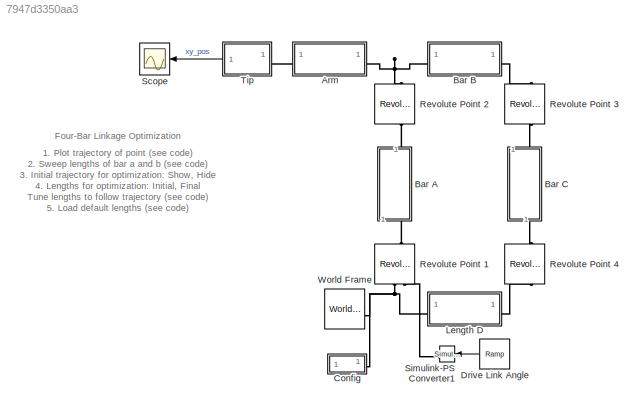
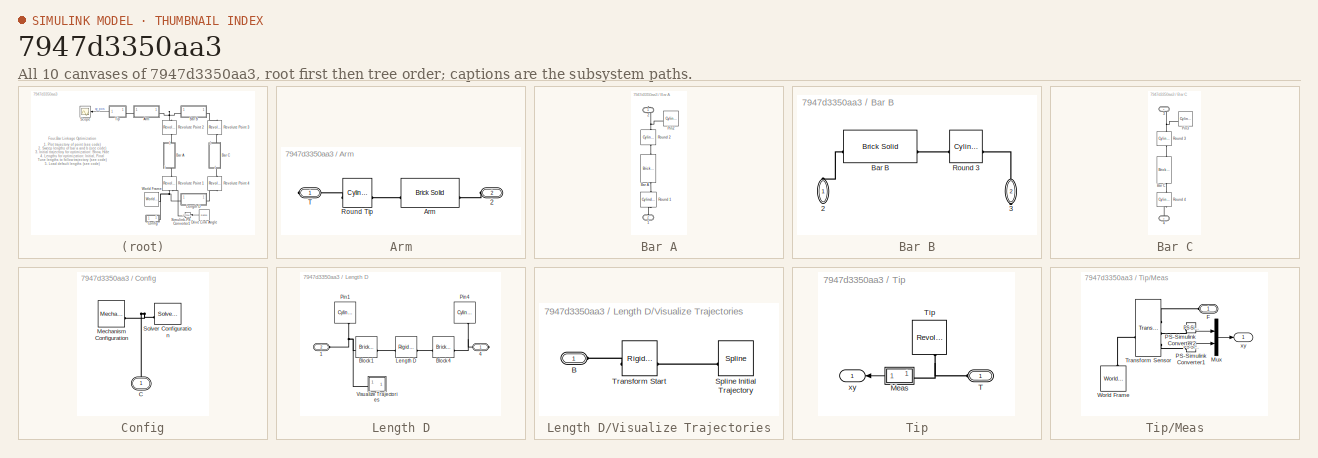
[diagram: thumbnail index - all 10 canvases of the model, root first then tree order]
MODEL slx_7947d3350aa3
KIND model
CONFIG EnableMultiTasking = on
CONFIG PostLoadFcn = sm_four_bar_optim_param\n
CONFIG SolverName = VariableStepAuto
CONFIG StopTime = StopTime
BLOCK [SubSystem] Arm
BLOCK [PMIOPort] Arm/2
  Port = 2
  Side = Left
BLOCK [Reference] Arm/Arm  REF=sm_lib/Body Elements/Brick Solid
  SourceBlock = sm_lib/Body Elements/Brick Solid
  SourceType = Brick Solid
BLOCK [Reference] Arm/Round Tip  REF=sm_lib/Body Elements/Cylindrical Solid
  SourceBlock = sm_lib/Body Elements/Cylindrical Solid
  SourceType = Cylindrical Solid
BLOCK [PMIOPort] Arm/T
  Side = Right
BLOCK [SubSystem] Bar A
  NameLocation = right
BLOCK [PMIOPort] Bar A/1
  NameLocation = right
  Port = 2
  Side = Left
BLOCK [PMIOPort] Bar A/2
  NameLocation = right
  Side = Right
BLOCK [Reference] Bar A/Bar A  REF=sm_lib/Body Elements/Brick Solid
  NameLocation = right
  SourceBlock = sm_lib/Body Elements/Brick Solid
  SourceType = Brick Solid
BLOCK [Reference] Bar A/Pin2  REF=sm_lib/Body Elements/Cylindrical Solid
  SourceBlock = sm_lib/Body Elements/Cylindrical Solid
  SourceType = Cylindrical Solid
BLOCK [Reference] Bar A/Round 1  REF=sm_lib/Body Elements/Cylindrical Solid
  NameLocation = right
  SourceBlock = sm_lib/Body Elements/Cylindrical Solid
  SourceType = Cylindrical Solid
BLOCK [Reference] Bar A/Round 2  REF=sm_lib/Body Elements/Cylindrical Solid
  NameLocation = right
  SourceBlock = sm_lib/Body Elements/Cylindrical Solid
  SourceType = Cylindrical Solid
BLOCK [SubSystem] Bar B
BLOCK [PMIOPort] Bar B/2
  NameLocation = right
  Side = Left
BLOCK [PMIOPort] Bar B/3
  NameLocation = left
  Port = 2
  Side = Right
BLOCK [Reference] Bar B/Bar B  REF=sm_lib/Body Elements/Brick Solid
  SourceBlock = sm_lib/Body Elements/Brick Solid
  SourceType = Brick Solid
BLOCK [Reference] Bar B/Round 3  REF=sm_lib/Body Elements/Cylindrical Solid
  SourceBlock = sm_lib/Body Elements/Cylindrical Solid
  SourceType = Cylindrical Solid
BLOCK [SubSystem] Bar C
  NameLocation = left
BLOCK [PMIOPort] Bar C/3
  NameLocation = right
  Side = Left
BLOCK [PMIOPort] Bar C/4
  NameLocation = right
  Port = 2
  Side = Right
BLOCK [Reference] Bar C/Bar C  REF=sm_lib/Body Elements/Brick Solid
  NameLocation = right
  SourceBlock = sm_lib/Body Elements/Brick Solid
  SourceType = Brick Solid
BLOCK [Reference] Bar C/Pin3  REF=sm_lib/Body Elements/Cylindrical Solid
  SourceBlock = sm_lib/Body Elements/Cylindrical Solid
  SourceType = Cylindrical Solid
BLOCK [Reference] Bar C/Round 3  REF=sm_lib/Body Elements/Cylindrical Solid
  NameLocation = right
  SourceBlock = sm_lib/Body Elements/Cylindrical Solid
  SourceType = Cylindrical Solid
BLOCK [Reference] Bar C/Round 4  REF=sm_lib/Body Elements/Cylindrical Solid
  NameLocation = right
  SourceBlock = sm_lib/Body Elements/Cylindrical Solid
  SourceType = Cylindrical Solid
BLOCK [SubSystem] Config
BLOCK [PMIOPort] Config/C
  NameLocation = left
  Side = Right
BLOCK [Reference] Config/Mechanism Configuration  REF=sm_lib/Utilities/Mechanism
Configuration
  SourceBlock = sm_lib/Utilities/Mechanism\nConfiguration
  SourceType = Mechanism\nConfiguration
BLOCK [Reference] Config/Solver Configuration  REF=nesl_utility/Solver
Configuration
  SourceBlock = nesl_utility/Solver\nConfiguration
  SourceType = Solver\nConfiguration
BLOCK [Reference] Drive Link Angle  REF=simulink/Sources/Ramp
  SourceBlock = simulink/Sources/Ramp
  SourceType = Ramp
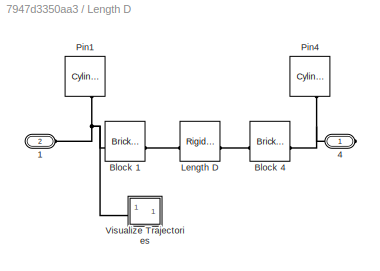
BLOCK [SubSystem] Length D
  NameLocation = top
BLOCK [PMIOPort] Length D/1
  Port = 2
  Side = Left
BLOCK [PMIOPort] Length D/4
  Side = Right
BLOCK [Reference] Length D/Block 1  REF=sm_lib/Body Elements/Brick Solid
  SourceBlock = sm_lib/Body Elements/Brick Solid
  SourceType = Brick Solid
BLOCK [Reference] Length D/Block 4  REF=sm_lib/Body Elements/Brick Solid
  SourceBlock = sm_lib/Body Elements/Brick Solid
  SourceType = Brick Solid
BLOCK [Reference] Length D/Length D  REF=sm_lib/Frames and
Transforms/Rigid
Transform
  NameLocation = top
  SourceBlock = sm_lib/Frames and\nTransforms/Rigid\nTransform
  SourceType = Rigid\nTransform
BLOCK [Reference] Length D/Pin1  REF=sm_lib/Body Elements/Cylindrical Solid
  NameLocation = left
  SourceBlock = sm_lib/Body Elements/Cylindrical Solid
  SourceType = Cylindrical Solid
BLOCK [Reference] Length D/Pin4  REF=sm_lib/Body Elements/Cylindrical Solid
  NameLocation = left
  SourceBlock = sm_lib/Body Elements/Cylindrical Solid
  SourceType = Cylindrical Solid
BLOCK [SubSystem] Length D/Visualize Trajectories
BLOCK [PMIOPort] Length D/Visualize Trajectories/B
  Side = Left
BLOCK [Reference] Length D/Visualize Trajectories/Spline Initial Trajectory  REF=sm_lib/Curves and Surfaces/Spline
  Commented = on
  SourceBlock = sm_lib/Curves and Surfaces/Spline
  SourceType = Spline
BLOCK [Reference] Length D/Visualize Trajectories/Transform Start  REF=sm_lib/Frames and
Transforms/Rigid
Transform
  SourceBlock = sm_lib/Frames and\nTransforms/Rigid\nTransform
  SourceType = Rigid\nTransform
BLOCK [Reference] Revolute Point 1  REF=sm_lib/Joints/Revolute Joint
  NameLocation = right
  SourceBlock = sm_lib/Joints/Revolute Joint
  SourceType = Revolute Joint
BLOCK [Reference] Revolute Point 2  REF=sm_lib/Joints/Revolute Joint
  NameLocation = right
  SourceBlock = sm_lib/Joints/Revolute Joint
  SourceType = Revolute Joint
BLOCK [Reference] Revolute Point 3  REF=sm_lib/Joints/Revolute Joint
  NameLocation = left
  SourceBlock = sm_lib/Joints/Revolute Joint
  SourceType = Revolute Joint
BLOCK [Reference] Revolute Point 4  REF=sm_lib/Joints/Revolute Joint
  NameLocation = left
  SourceBlock = sm_lib/Joints/Revolute Joint
  SourceType = Revolute Joint
BLOCK [Scope] Scope
  ActiveDisplayYMaximum = 0.275
  ActiveDisplayYMinimum = -0.475
  DataLoggingDecimateData = on
  DataLoggingDecimation = 1
  DataLoggingLimitDataPoints = on
  DataLoggingSaveFormat = Array
  Floating = off
  GraphicalSettings = {"GraphicalSettings":{"LegacySettings":true,"Style":{"Style":{"AxesColor":"[0 0 0]","ChannelNames":[""],"ColorOrder":"[1 0.909803921568627 0.392156862745098;0.149019607843137 0.549019607843137 0.866666666666667;0.96078431372549 0.466666666666667 0.16078431372549;0.286274509803922 0.858823529411765 0.250980392156863;0.752941176470588 0.36078431372549 0.984313725490196;0.423529411764706 0.9568627450...<+432ch>
  MultipleDisplayCache = [{"MaxYLimMag":0.475,"MaxYLimReal":0.275,"MinYLimMag":0,"MinYLimReal":-0.475,"PlotAsMagnitudePhase":false,"ShowGrid":true,"ShowLegend":false,"Title":"%<SignalLabel>","YLabel":""}]
  NumInputPorts = 1
  WasSavedAsWebScope = on
BLOCK [Reference] Simulink-PS Converter1  REF=nesl_utility/Simulink-PS
Converter
  SourceBlock = nesl_utility/Simulink-PS\nConverter
  SourceType = Simulink-PS\nConverter
BLOCK [SubSystem] Tip
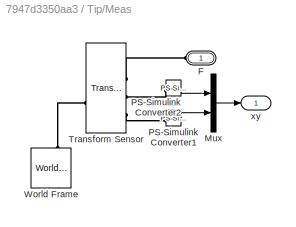
BLOCK [SubSystem] Tip/Meas
BLOCK [PMIOPort] Tip/Meas/F
  NameLocation = top
  Side = Left
BLOCK [Mux] Tip/Meas/Mux
  DisplayOption = bar
  Inputs = 2
BLOCK [Reference] Tip/Meas/PS-Simulink Converter1  REF=nesl_utility/PS-Simulink
Converter
  SourceBlock = nesl_utility/PS-Simulink\nConverter
  SourceType = PS-Simulink\nConverter
BLOCK [Reference] Tip/Meas/PS-Simulink Converter2  REF=nesl_utility/PS-Simulink
Converter
  SourceBlock = nesl_utility/PS-Simulink\nConverter
  SourceType = PS-Simulink\nConverter
BLOCK [Reference] Tip/Meas/Transform Sensor  REF=sm_lib/Frames and
Transforms/Transform
Sensor
  NameLocation = top
  SourceBlock = sm_lib/Frames and\nTransforms/Transform\nSensor
  SourceType = Transform\nSensor
BLOCK [Reference] Tip/Meas/World Frame  REF=sm_lib/Frames and
Transforms/World Frame
  NameLocation = right
  SourceBlock = sm_lib/Frames and\nTransforms/World Frame
  SourceType = World Frame
BLOCK [Outport] Tip/Meas/xy
  VectorParamsAs1DForOutWhenUnconnected = off
BLOCK [PMIOPort] Tip/T
  Side = Left
BLOCK [Reference] Tip/Tip  REF=sm_lib/Body Elements/Revolved Solid
  NameLocation = right
  SourceBlock = sm_lib/Body Elements/Revolved Solid
  SourceType = Revolved Solid
BLOCK [Outport] Tip/xy
  VectorParamsAs1DForOutWhenUnconnected = off
BLOCK [Reference] World Frame  REF=sm_lib/Frames and
Transforms/World Frame
  SourceBlock = sm_lib/Frames and\nTransforms/World Frame
  SourceType = World Frame
ANNOTATION (root): 1. Plot trajectory of point ( see code ) 2. Sweep lengths of bar a and b ( see code ) 3. Initial trajectory for optimization: Show , Hide 4. Lengths for optimization: Initial , Final Tune lengths to follow trajectory ( see code ) 5. Load default lengths ( see code ) 6. Explore simulation results using sscexplore 7. Learn more about this example
ANNOTATION (root): Four-Bar Linkage Optimization
LINE Drive Link Angle:1 -> Simulink-PS Converter1:1
LINE Tip/Meas/Mux:1 -> Tip/Meas/xy:1
LINE Tip/Meas/PS-Simulink Converter1:1 -> Tip/Meas/Mux:2
LINE Tip/Meas/PS-Simulink Converter2:1 -> Tip/Meas/Mux:1
LINE Tip/Meas:1 -> Tip/xy:1
LINE Tip:1 -> Scope:1
PLINE Arm/2:RConn1 -- Arm/Arm:LConn1
PLINE Arm/Arm:RConn1 -- Arm/Round Tip:RConn1
PLINE Arm/Round Tip:LConn1 -- Arm/T:RConn1
PNET net1: Arm:LConn1 -- Bar B:LConn1 -- Revolute Point 2:RConn1
PLINE Arm:RConn1 -- Tip:LConn1
PLINE Bar A/1:RConn1 -- Bar A/Round 1:LConn1
PNET net2: Bar A/2:RConn1 -- Bar A/Pin2:RConn1 -- Bar A/Round 2:LConn1
PLINE Bar A/Bar A:LConn1 -- Bar A/Round 1:RConn1
PLINE Bar A/Bar A:RConn1 -- Bar A/Round 2:RConn1
PLINE Bar A:LConn1 -- Revolute Point 1:RConn1
PLINE Bar A:RConn1 -- Revolute Point 2:LConn1
PLINE Bar B/2:RConn1 -- Bar B/Bar B:LConn1
PLINE Bar B/3:RConn1 -- Bar B/Round 3:LConn1
PLINE Bar B/Bar B:RConn1 -- Bar B/Round 3:RConn1
PLINE Bar B:RConn1 -- Revolute Point 3:LConn1
PNET net3: Bar C/3:RConn1 -- Bar C/Pin3:RConn1 -- Bar C/Round 3:LConn1
PLINE Bar C/4:RConn1 -- Bar C/Round 4:LConn1
PLINE Bar C/Bar C:LConn1 -- Bar C/Round 3:RConn1
PLINE Bar C/Bar C:RConn1 -- Bar C/Round 4:RConn1
PLINE Bar C:LConn1 -- Revolute Point 3:RConn1
PLINE Bar C:RConn1 -- Revolute Point 4:LConn1
PNET net4: Config/C:RConn1 -- Config/Mechanism Configuration:RConn1 -- Config/Solver Configuration:RConn1
PNET net5: Config:RConn1 -- Length D:LConn1 -- Revolute Point 1:LConn1 -- World Frame:RConn1
PNET net6: Length D/1:RConn1 -- Length D/Block 1:LConn1 -- Length D/Pin1:RConn1 -- Length D/Visualize Trajectories:LConn1
PNET net7: Length D/4:RConn1 -- Length D/Block 4:LConn1 -- Length D/Pin4:RConn1
PLINE Length D/Block 1:RConn1 -- Length D/Length D:LConn1
PLINE Length D/Block 4:RConn1 -- Length D/Length D:RConn1
PLINE Length D/Visualize Trajectories/B:RConn1 -- Length D/Visualize Trajectories/Transform Start:LConn1
PLINE Length D/Visualize Trajectories/Spline Initial Trajectory:LConn1 -- Length D/Visualize Trajectories/Transform Start:RConn1
PLINE Length D:RConn1 -- Revolute Point 4:RConn1
PLINE Revolute Point 1:LConn2 -- Simulink-PS Converter1:RConn1
PLINE Tip/Meas/F:RConn1 -- Tip/Meas/Transform Sensor:RConn1
PLINE Tip/Meas/PS-Simulink Converter1:LConn1 -- Tip/Meas/Transform Sensor:RConn3
PLINE Tip/Meas/PS-Simulink Converter2:LConn1 -- Tip/Meas/Transform Sensor:RConn2
PLINE Tip/Meas/Transform Sensor:LConn1 -- Tip/Meas/World Frame:RConn1
PNET net8: Tip/Meas:LConn1 -- Tip/T:RConn1 -- Tip/Tip:RConn1
note: PNET lines group multi-terminal physical nets as a canonical sorted terminal list (undirected conserving connections); 2-terminal nets keep the pairwise PLINE form
